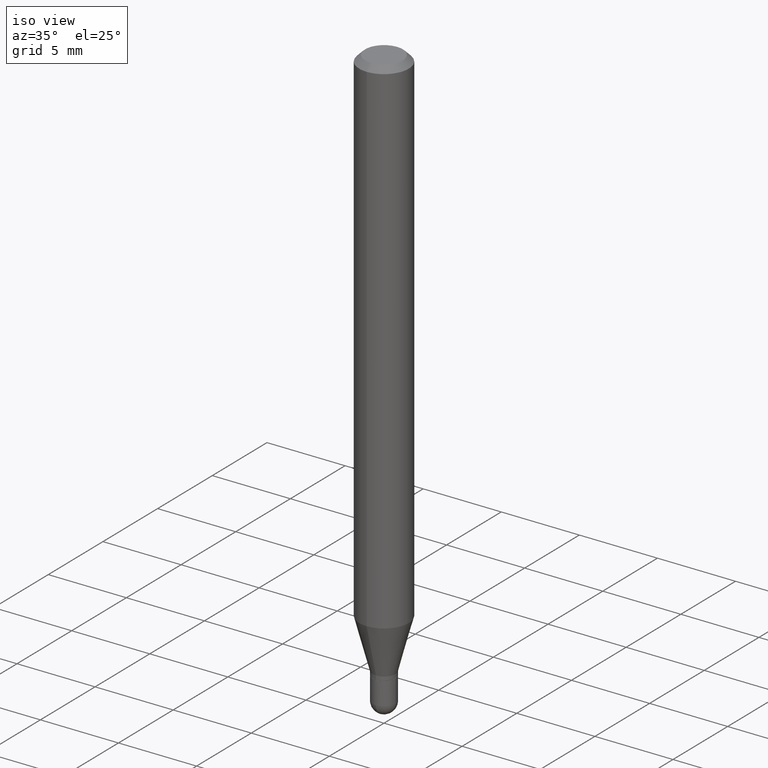
[diagram: clean part render]
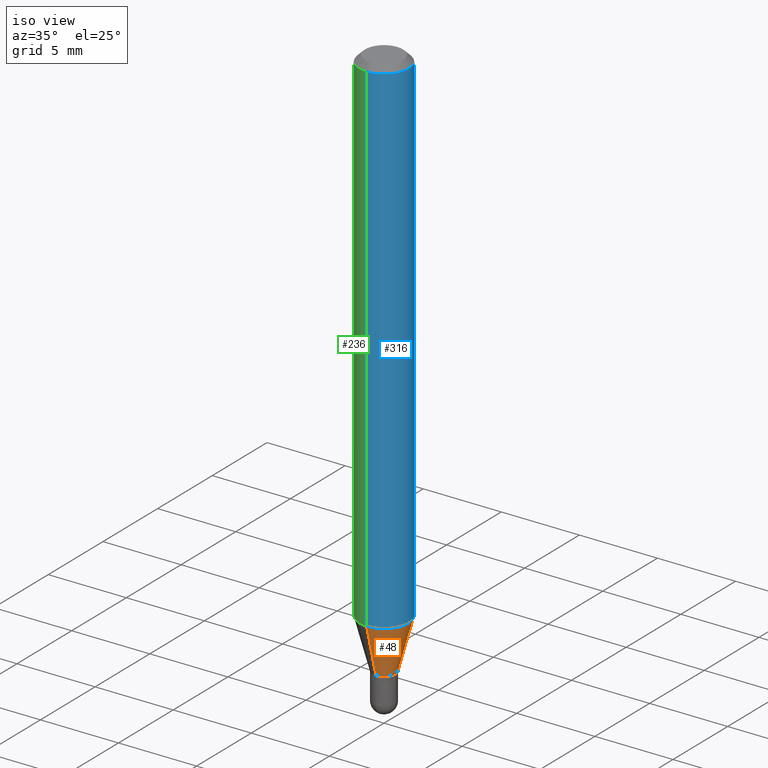
[diagram: same view with three faces highlighted in distinct colors, each labeled with its STEP entity id]
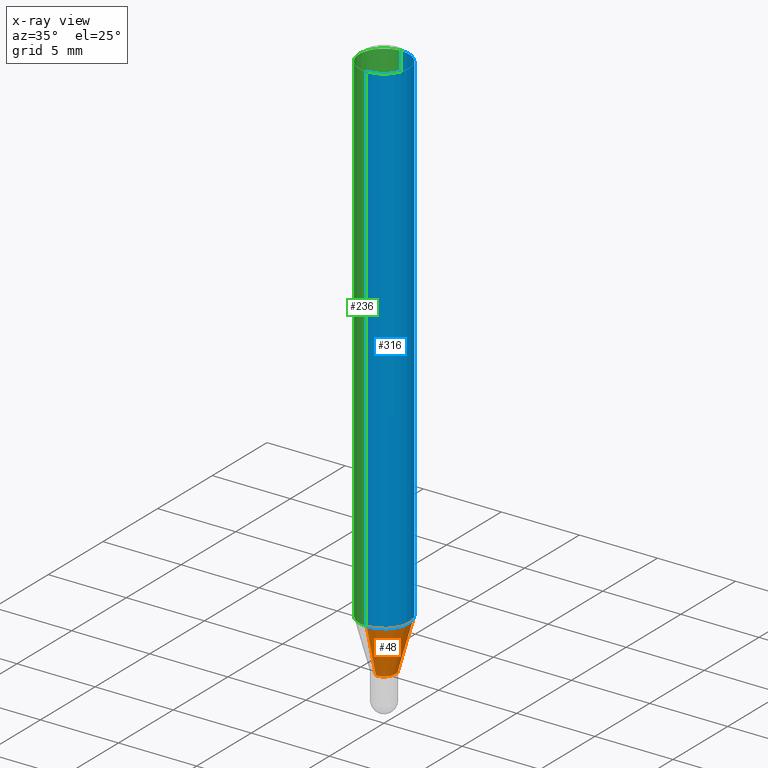
[diagram: x-ray of the same camera — body ghosted, the three highlighted faces saturated]
A machine part, iso view with three faces highlighted in distinct colors.
The next image is the same camera in x-ray (body ghosted, the three faces saturated) — at least one of them is partly hidden behind the body in this view.
Their STEP definitions:

[orange] entity #48 — the highlighted conical surface has half-angle 15 deg.
#13 = AXIS2_PLACEMENT_3D ( 'NONE', #117, #276, #393 ) ;
#19 = VERTEX_POINT ( 'NONE', #483 ) ;
#27 = VECTOR ( 'NONE', #436, 39.37007874015748854 ) ;
#38 = AXIS2_PLACEMENT_3D ( 'NONE', #261, #475, #420 ) ;
#48 = ADVANCED_FACE ( 'NONE', ( #230 ), #233, .T. ) ;
#113 = EDGE_CURVE ( 'NONE', #365, #19, #349, .T. ) ;
#117 = CARTESIAN_POINT ( 'NONE',  ( 3.430986730875647488E-29, -4.898556916756080332E-15, -1.403000000000000247 ) ) ;
#122 = CARTESIAN_POINT ( 'NONE',  ( 3.430986730875647488E-29, -4.898556916756080332E-15, -1.403000000000000247 ) ) ;
#129 = LINE ( 'NONE', #263, #286 ) ;
#132 = ORIENTED_EDGE ( 'NONE', *, *, #491, .T. ) ;
#163 = EDGE_CURVE ( 'NONE', #365, #317, #446, .T. ) ;
#207 = ORIENTED_EDGE ( 'NONE', *, *, #457, .F. ) ;
#230 = FACE_OUTER_BOUND ( 'NONE', #376, .T. ) ;
#233 = CONICAL_SURFACE ( 'NONE', #13, 0.02899999999999992514, 0.2617993877991505736 ) ;
#249 = CARTESIAN_POINT ( 'NONE',  ( -4.364351673553605587E-16, -0.06250000000000449640, -1.277976297946442852 ) ) ;
#261 = CARTESIAN_POINT ( 'NONE',  ( 3.125245702514488785E-29, -4.462038227908679794E-15, -1.277976297946443296 ) ) ;
#263 = CARTESIAN_POINT ( 'NONE',  ( 2.060573933704627882E-16, 0.02899999999999502281, -1.403000000000000247 ) ) ;
#276 = DIRECTION ( 'NONE',  ( -2.445464526639804686E-29, 3.491487467395637572E-15, 1.000000000000000000 ) ) ;
#278 = ORIENTED_EDGE ( 'NONE', *, *, #163, .F. ) ;
#286 = VECTOR ( 'NONE', #344, 39.37007874015748143 ) ;
#317 = VERTEX_POINT ( 'NONE', #249 ) ;
#320 = AXIS2_PLACEMENT_3D ( 'NONE', #122, #447, #364 ) ;
#344 = DIRECTION ( 'NONE',  ( 1.839019923739602287E-15, 0.2588190451025252359, 0.9659258262890670910 ) ) ;
#349 = CIRCLE ( 'NONE', #320, 0.02899999999999992514 ) ;
#364 = DIRECTION ( 'NONE',  ( -6.982962677686265922E-15, -1.000000000000000000, 0.000000000000000000 ) ) ;
#365 = VERTEX_POINT ( 'NONE', #495 ) ;
#376 = EDGE_LOOP ( 'NONE', ( #480, #132, #207, #278 ) ) ;
#390 = VERTEX_POINT ( 'NONE', #479 ) ;
#393 = DIRECTION ( 'NONE',  ( -6.982962677686265922E-15, -1.000000000000000000, 0.000000000000000000 ) ) ;
#412 = CIRCLE ( 'NONE', #38, 0.06250000000000000000 ) ;
#420 = DIRECTION ( 'NONE',  ( -6.982962677686265922E-15, -1.000000000000000000, 4.370956789862821150E-15 ) ) ;
#436 = DIRECTION ( 'NONE',  ( -1.807323732225332111E-15, -0.2588190451025184635, 0.9659258262890689783 ) ) ;
#446 = LINE ( 'NONE', #484, #27 ) ;
#447 = DIRECTION ( 'NONE',  ( -2.445464526639804686E-29, 3.491487467395637572E-15, 1.000000000000000000 ) ) ;
#457 = EDGE_CURVE ( 'NONE', #317, #390, #412, .T. ) ;
#475 = DIRECTION ( 'NONE',  ( -2.445464526639804686E-29, 3.491487467395637572E-15, 1.000000000000000000 ) ) ;
#479 = CARTESIAN_POINT ( 'NONE',  ( 4.440892098500935790E-16, 0.06249999999999551054, -1.277976297946443518 ) ) ;
#480 = ORIENTED_EDGE ( 'NONE', *, *, #113, .T. ) ;
#483 = CARTESIAN_POINT ( 'NONE',  ( 3.250733016102783684E-16, 0.02899999999999502281, -1.403000000000000247 ) ) ;
#484 = CARTESIAN_POINT ( 'NONE',  ( -2.025059176528669025E-16, -0.02900000000000482400, -1.403000000000000247 ) ) ;
#491 = EDGE_CURVE ( 'NONE', #19, #390, #129, .T. ) ;
#495 = CARTESIAN_POINT ( 'NONE',  ( -2.025059176528669025E-16, -0.02900000000000482400, -1.403000000000000247 ) ) ;

[blue] entity #316 — the highlighted cylindrical surface (edge-blend (fillet) strip) has radius 1.5875 mm, axis along (-0, 0, 1).
#20 = LINE ( 'NONE', #64, #56 ) ;
#24 = EDGE_CURVE ( 'NONE', #390, #60, #268, .T. ) ;
#32 = DIRECTION ( 'NONE',  ( -2.445464526639804686E-29, 3.491487467395637572E-15, 1.000000000000000000 ) ) ;
#38 = AXIS2_PLACEMENT_3D ( 'NONE', #261, #475, #420 ) ;
#56 = VECTOR ( 'NONE', #103, 39.37007874015748143 ) ;
#60 = VERTEX_POINT ( 'NONE', #318 ) ;
#62 = CARTESIAN_POINT ( 'NONE',  ( 3.668196789959787324E-31, -5.237231201093571383E-17, -0.01500000000000032904 ) ) ;
#64 = CARTESIAN_POINT ( 'NONE',  ( -4.364351673553916201E-16, -0.06250000000000000000, 2.182179667122273482E-16 ) ) ;
#85 = ORIENTED_EDGE ( 'NONE', *, *, #24, .T. ) ;
#101 = CARTESIAN_POINT ( 'NONE',  ( 0.000000000000000000, 0.000000000000000000, 0.000000000000000000 ) ) ;
#103 = DIRECTION ( 'NONE',  ( -2.445464526639804406E-29, 3.491487467395637572E-15, 1.000000000000000000 ) ) ;
#106 = DIRECTION ( 'NONE',  ( -6.982962677686265922E-15, -1.000000000000000000, 3.483106191921935554E-15 ) ) ;
#126 = ORIENTED_EDGE ( 'NONE', *, *, #252, .F. ) ;
#130 = AXIS2_PLACEMENT_3D ( 'NONE', #62, #341, #106 ) ;
#144 = CARTESIAN_POINT ( 'NONE',  ( -4.364351673553912750E-16, -0.06250000000000005551, -0.01500000000000011047 ) ) ;
#185 = ORIENTED_EDGE ( 'NONE', *, *, #457, .T. ) ;
#189 = CARTESIAN_POINT ( 'NONE',  ( 4.440892098500625669E-16, 0.06250000000000000000, -2.182179667122273482E-16 ) ) ;
#225 = FACE_OUTER_BOUND ( 'NONE', #482, .T. ) ;
#243 = EDGE_CURVE ( 'NONE', #317, #389, #20, .T. ) ;
#249 = CARTESIAN_POINT ( 'NONE',  ( -4.364351673553605587E-16, -0.06250000000000449640, -1.277976297946442852 ) ) ;
#252 = EDGE_CURVE ( 'NONE', #389, #60, #448, .T. ) ;
#261 = CARTESIAN_POINT ( 'NONE',  ( 3.125245702514488785E-29, -4.462038227908679794E-15, -1.277976297946443296 ) ) ;
#268 = LINE ( 'NONE', #189, #440 ) ;
#300 = CYLINDRICAL_SURFACE ( 'NONE', #511, 0.06250000000000000000 ) ;
#316 = ADVANCED_FACE ( 'NONE', ( #225 ), #300, .T. ) ;
#317 = VERTEX_POINT ( 'NONE', #249 ) ;
#318 = CARTESIAN_POINT ( 'NONE',  ( 4.440892098500940720E-16, 0.06249999999999995143, -0.01500000000000054588 ) ) ;
#341 = DIRECTION ( 'NONE',  ( -2.445464526639804686E-29, 3.491487467395637572E-15, 1.000000000000000000 ) ) ;
#347 = DIRECTION ( 'NONE',  ( -2.445464526639804406E-29, 3.491487467395637572E-15, 1.000000000000000000 ) ) ;
#389 = VERTEX_POINT ( 'NONE', #144 ) ;
#390 = VERTEX_POINT ( 'NONE', #479 ) ;
#412 = CIRCLE ( 'NONE', #38, 0.06250000000000000000 ) ;
#420 = DIRECTION ( 'NONE',  ( -6.982962677686265922E-15, -1.000000000000000000, 4.370956789862821150E-15 ) ) ;
#434 = ORIENTED_EDGE ( 'NONE', *, *, #243, .F. ) ;
#440 = VECTOR ( 'NONE', #347, 39.37007874015748143 ) ;
#448 = CIRCLE ( 'NONE', #130, 0.06250000000000000000 ) ;
#457 = EDGE_CURVE ( 'NONE', #317, #390, #412, .T. ) ;
#458 = DIRECTION ( 'NONE',  ( -6.982962677686265922E-15, -1.000000000000000000, 3.491487467395637572E-15 ) ) ;
#475 = DIRECTION ( 'NONE',  ( -2.445464526639804686E-29, 3.491487467395637572E-15, 1.000000000000000000 ) ) ;
#479 = CARTESIAN_POINT ( 'NONE',  ( 4.440892098500935790E-16, 0.06249999999999551054, -1.277976297946443518 ) ) ;
#482 = EDGE_LOOP ( 'NONE', ( #185, #85, #126, #434 ) ) ;
#511 = AXIS2_PLACEMENT_3D ( 'NONE', #101, #32, #458 ) ;

[green] entity #236 — the highlighted cylindrical surface (edge-blend (fillet) strip) has radius 1.5875 mm, axis along (-0, 0, 1).
#9 = CARTESIAN_POINT ( 'NONE',  ( 3.668196789959787324E-31, -5.237231201093571383E-17, -0.01500000000000032904 ) ) ;
#18 = CIRCLE ( 'NONE', #490, 0.06250000000000000000 ) ;
#20 = LINE ( 'NONE', #64, #56 ) ;
#23 = CYLINDRICAL_SURFACE ( 'NONE', #160, 0.06250000000000000000 ) ;
#24 = EDGE_CURVE ( 'NONE', #390, #60, #268, .T. ) ;
#39 = DIRECTION ( 'NONE',  ( -6.982962677686265922E-15, -1.000000000000000000, 3.483106191921935554E-15 ) ) ;
#56 = VECTOR ( 'NONE', #103, 39.37007874015748143 ) ;
#60 = VERTEX_POINT ( 'NONE', #318 ) ;
#64 = CARTESIAN_POINT ( 'NONE',  ( -4.364351673553916201E-16, -0.06250000000000000000, 2.182179667122273482E-16 ) ) ;
#103 = DIRECTION ( 'NONE',  ( -2.445464526639804406E-29, 3.491487467395637572E-15, 1.000000000000000000 ) ) ;
#144 = CARTESIAN_POINT ( 'NONE',  ( -4.364351673553912750E-16, -0.06250000000000005551, -0.01500000000000011047 ) ) ;
#147 = EDGE_CURVE ( 'NONE', #390, #317, #254, .T. ) ;
#160 = AXIS2_PLACEMENT_3D ( 'NONE', #177, #306, #472 ) ;
#177 = CARTESIAN_POINT ( 'NONE',  ( 0.000000000000000000, 0.000000000000000000, 0.000000000000000000 ) ) ;
#189 = CARTESIAN_POINT ( 'NONE',  ( 4.440892098500625669E-16, 0.06250000000000000000, -2.182179667122273482E-16 ) ) ;
#198 = ORIENTED_EDGE ( 'NONE', *, *, #395, .F. ) ;
#200 = DIRECTION ( 'NONE',  ( -2.445464526639804686E-29, 3.491487467395637572E-15, 1.000000000000000000 ) ) ;
#210 = EDGE_LOOP ( 'NONE', ( #462, #248, #277, #198 ) ) ;
#236 = ADVANCED_FACE ( 'NONE', ( #264 ), #23, .T. ) ;
#243 = EDGE_CURVE ( 'NONE', #317, #389, #20, .T. ) ;
#248 = ORIENTED_EDGE ( 'NONE', *, *, #147, .T. ) ;
#249 = CARTESIAN_POINT ( 'NONE',  ( -4.364351673553605587E-16, -0.06250000000000449640, -1.277976297946442852 ) ) ;
#254 = CIRCLE ( 'NONE', #374, 0.06250000000000000000 ) ;
#264 = FACE_OUTER_BOUND ( 'NONE', #210, .T. ) ;
#268 = LINE ( 'NONE', #189, #440 ) ;
#277 = ORIENTED_EDGE ( 'NONE', *, *, #243, .T. ) ;
#306 = DIRECTION ( 'NONE',  ( -2.445464526639804686E-29, 3.491487467395637572E-15, 1.000000000000000000 ) ) ;
#317 = VERTEX_POINT ( 'NONE', #249 ) ;
#318 = CARTESIAN_POINT ( 'NONE',  ( 4.440892098500940720E-16, 0.06249999999999995143, -0.01500000000000054588 ) ) ;
#321 = DIRECTION ( 'NONE',  ( -6.982962677686265922E-15, -1.000000000000000000, 4.370956789862821150E-15 ) ) ;
#347 = DIRECTION ( 'NONE',  ( -2.445464526639804406E-29, 3.491487467395637572E-15, 1.000000000000000000 ) ) ;
#374 = AXIS2_PLACEMENT_3D ( 'NONE', #481, #200, #321 ) ;
#389 = VERTEX_POINT ( 'NONE', #144 ) ;
#390 = VERTEX_POINT ( 'NONE', #479 ) ;
#395 = EDGE_CURVE ( 'NONE', #60, #389, #18, .T. ) ;
#399 = DIRECTION ( 'NONE',  ( -2.445464526639804686E-29, 3.491487467395637572E-15, 1.000000000000000000 ) ) ;
#440 = VECTOR ( 'NONE', #347, 39.37007874015748143 ) ;
#462 = ORIENTED_EDGE ( 'NONE', *, *, #24, .F. ) ;
#472 = DIRECTION ( 'NONE',  ( -6.982962677686265922E-15, -1.000000000000000000, 3.491487467395637572E-15 ) ) ;
#479 = CARTESIAN_POINT ( 'NONE',  ( 4.440892098500935790E-16, 0.06249999999999551054, -1.277976297946443518 ) ) ;
#481 = CARTESIAN_POINT ( 'NONE',  ( 3.125245702514488785E-29, -4.462038227908679794E-15, -1.277976297946443296 ) ) ;
#490 = AXIS2_PLACEMENT_3D ( 'NONE', #9, #399, #39 ) ;